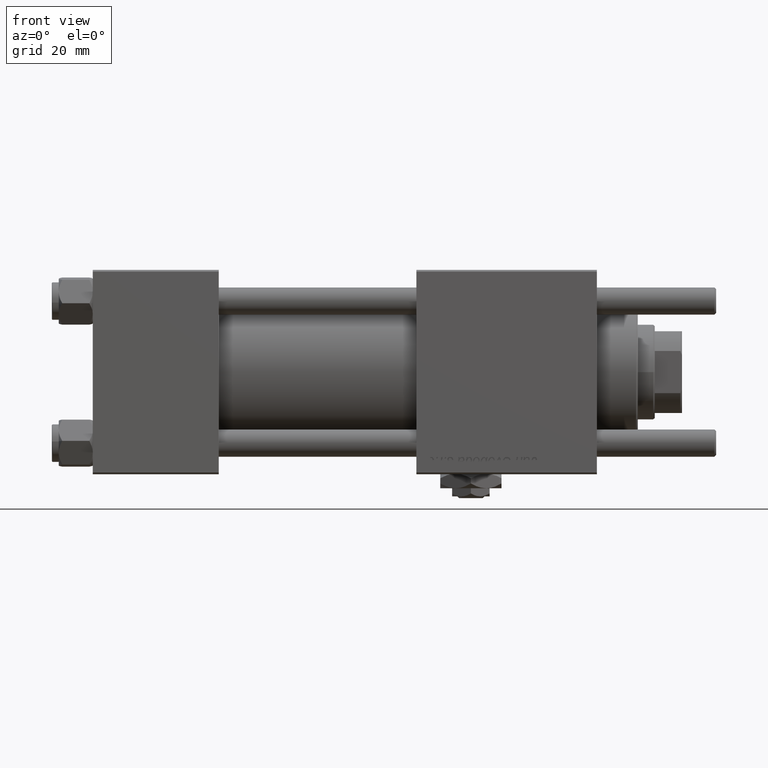
[diagram: clean part render]
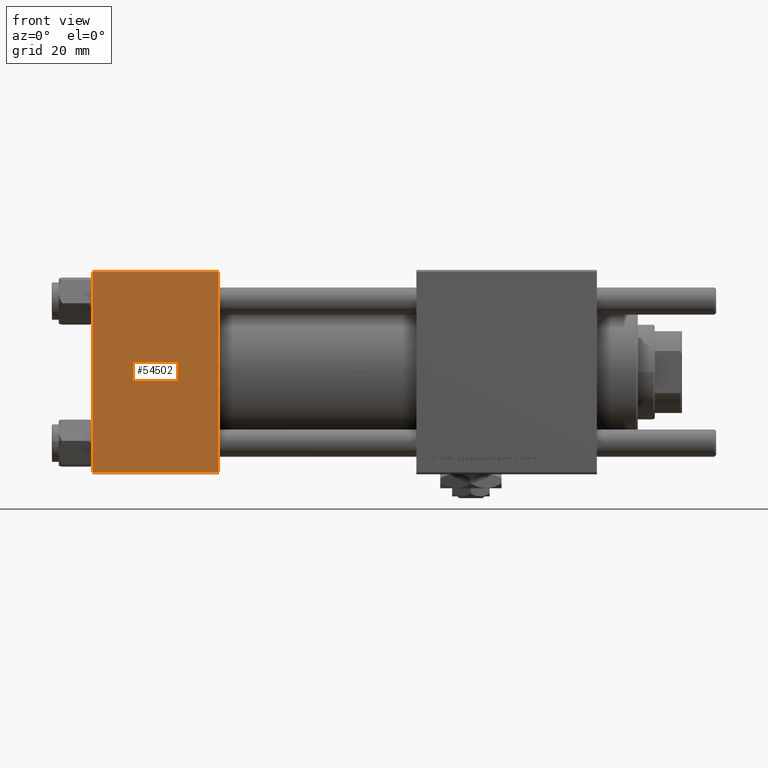
[diagram: same view with one face highlighted and labeled with its STEP entity id]
A machine part, front view. The second image highlights one B-rep face of the part: STEP entity #54502.
In plain terms, the highlighted planar face has unit normal (0, 1, 0).
Its self-contained STEP definition (entity closure, byte-faithful):
#280 = ORIENTED_EDGE ( 'NONE', *, *, #45895, .T. ) ;
#2562 = DIRECTION ( 'NONE',  ( -1.000000000000000000, 0.000000000000000000, 0.000000000000000000 ) ) ;
#4105 = FACE_OUTER_BOUND ( 'NONE', #17876, .T. ) ;
#4298 = LINE ( 'NONE', #27468, #32648 ) ;
#4347 = EDGE_CURVE ( 'NONE', #7143, #21823, #28027, .T. ) ;
#6427 = LINE ( 'NONE', #42649, #27314 ) ;
#7143 = VERTEX_POINT ( 'NONE', #37441 ) ;
#7678 = CARTESIAN_POINT ( 'NONE',  ( 37.00000000000000000, -30.00000000000000000, 29.99999999999999289 ) ) ;
#8783 = ORIENTED_EDGE ( 'NONE', *, *, #4347, .F. ) ;
#9683 = VERTEX_POINT ( 'NONE', #14871 ) ;
#12711 = ORIENTED_EDGE ( 'NONE', *, *, #51720, .T. ) ;
#14871 = CARTESIAN_POINT ( 'NONE',  ( 0.000000000000000000, -30.00000000000000000, 29.49999999999999289 ) ) ;
#16932 = VERTEX_POINT ( 'NONE', #21674 ) ;
#17876 = EDGE_LOOP ( 'NONE', ( #42087, #280, #8783, #12711 ) ) ;
#21674 = CARTESIAN_POINT ( 'NONE',  ( 0.000000000000000000, -30.00000000000000000, -29.50000000000001776 ) ) ;
#21823 = VERTEX_POINT ( 'NONE', #53438 ) ;
#21939 = PLANE ( 'NONE',  #24511 ) ;
#22420 = DIRECTION ( 'NONE',  ( 0.000000000000000000, 0.000000000000000000, -1.000000000000000000 ) ) ;
#24511 = AXIS2_PLACEMENT_3D ( 'NONE', #7678, #39440, #40321 ) ;
#25258 = EDGE_CURVE ( 'NONE', #9683, #16932, #4298, .T. ) ;
#27308 = LINE ( 'NONE', #40360, #31043 ) ;
#27314 = VECTOR ( 'NONE', #2562, 1000.000000000000000 ) ;
#27468 = CARTESIAN_POINT ( 'NONE',  ( 0.000000000000000000, -30.00000000000000000, 29.99999999999999289 ) ) ;
#28027 = LINE ( 'NONE', #50568, #30370 ) ;
#30370 = VECTOR ( 'NONE', #55869, 1000.000000000000000 ) ;
#31043 = VECTOR ( 'NONE', #45107, 1000.000000000000000 ) ;
#32648 = VECTOR ( 'NONE', #22420, 1000.000000000000000 ) ;
#37441 = CARTESIAN_POINT ( 'NONE',  ( 37.00000000000000000, -30.00000000000000000, 29.49999999999999289 ) ) ;
#39440 = DIRECTION ( 'NONE',  ( -0.000000000000000000, 1.000000000000000000, 0.000000000000000000 ) ) ;
#40321 = DIRECTION ( 'NONE',  ( 0.000000000000000000, -0.000000000000000000, 1.000000000000000000 ) ) ;
#40360 = CARTESIAN_POINT ( 'NONE',  ( 37.00000000000000000, -30.00000000000000000, -29.50000000000001776 ) ) ;
#42087 = ORIENTED_EDGE ( 'NONE', *, *, #25258, .T. ) ;
#42649 = CARTESIAN_POINT ( 'NONE',  ( 37.00000000000000000, -30.00000000000000000, 29.49999999999999289 ) ) ;
#45107 = DIRECTION ( 'NONE',  ( 1.000000000000000000, 0.000000000000000000, 0.000000000000000000 ) ) ;
#45895 = EDGE_CURVE ( 'NONE', #16932, #21823, #27308, .T. ) ;
#50568 = CARTESIAN_POINT ( 'NONE',  ( 37.00000000000000000, -30.00000000000000000, 29.99999999999999289 ) ) ;
#51720 = EDGE_CURVE ( 'NONE', #7143, #9683, #6427, .T. ) ;
#53438 = CARTESIAN_POINT ( 'NONE',  ( 37.00000000000000000, -30.00000000000000000, -29.50000000000001776 ) ) ;
#54502 = ADVANCED_FACE ( 'NONE', ( #4105 ), #21939, .F. ) ;
#55869 = DIRECTION ( 'NONE',  ( 0.000000000000000000, 0.000000000000000000, -1.000000000000000000 ) ) ;